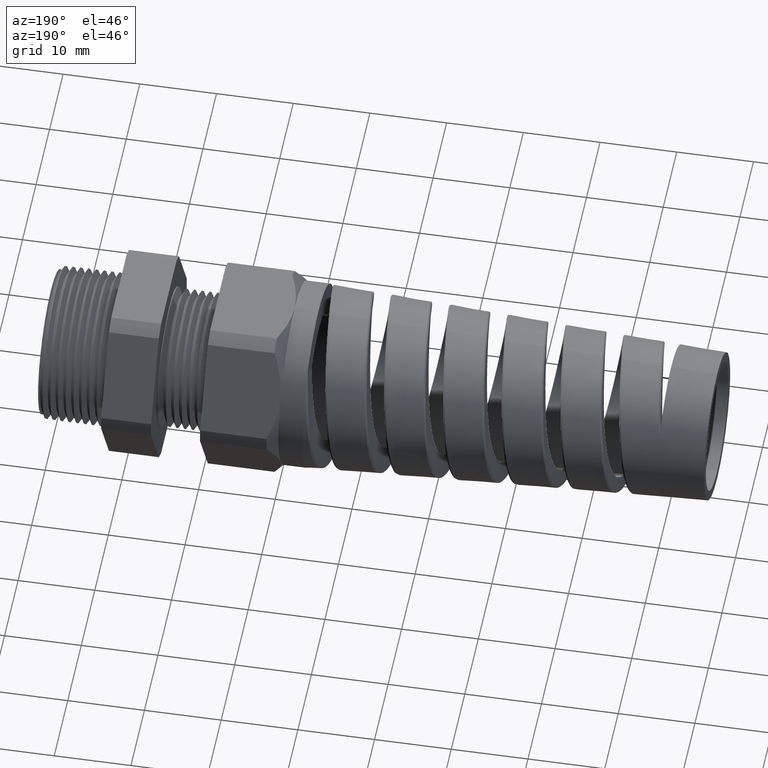
[diagram: clean part render]
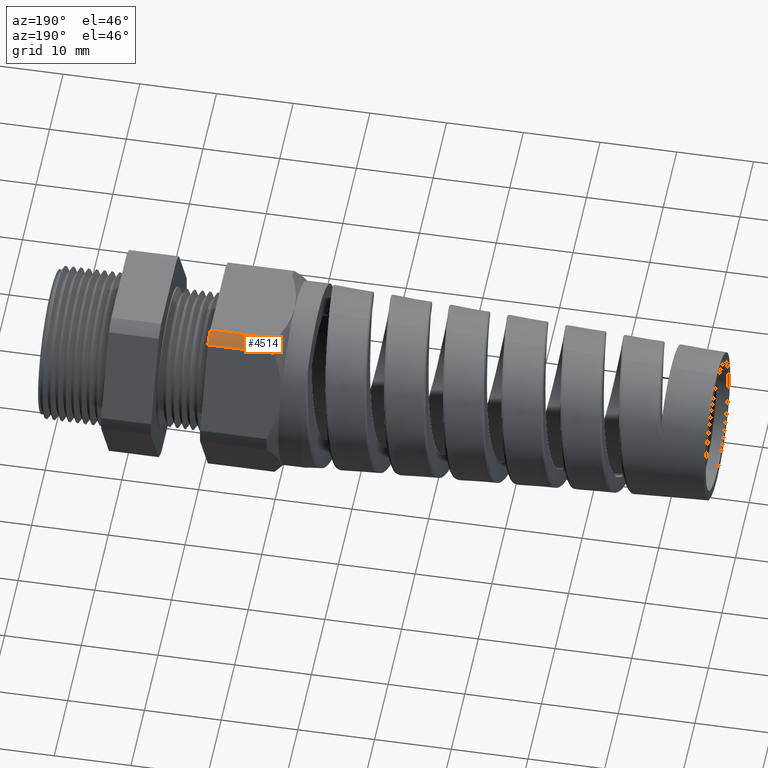
[diagram: same view with one face highlighted and labeled with its STEP entity id]
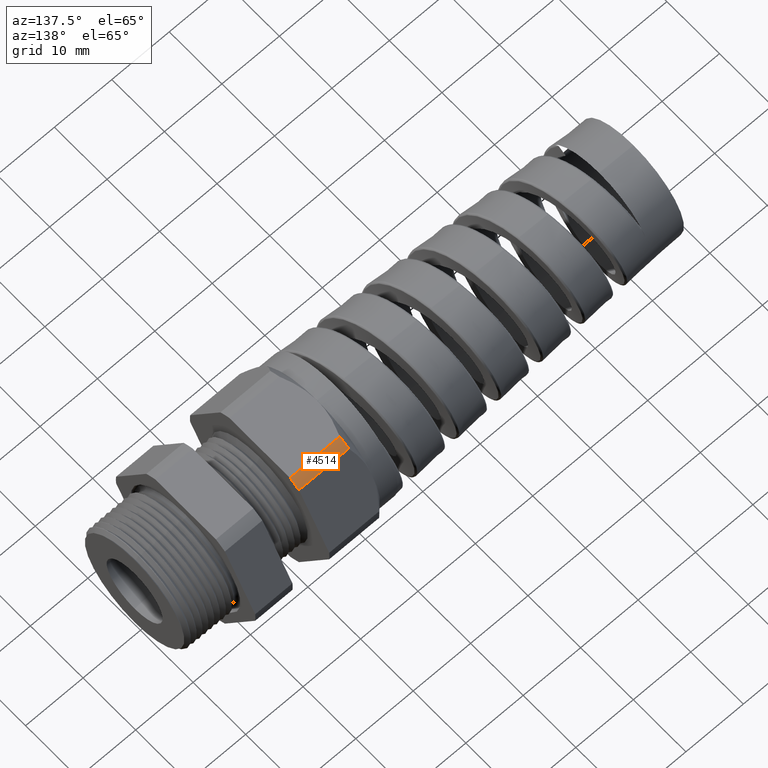
[diagram: same view with one face highlighted and labeled with its STEP entity id]
A machine part, auxiliary view. The second image highlights one B-rep face of the part: STEP entity #4514.
A second angle (auxiliary view) of the same face is appended — the face is thin or edge-on in the first view.
In plain terms, the highlighted cylindrical surface (partial cylindrical patch) has radius 13.2512 mm, axis along (-1, 0, 0).
Its self-contained STEP definition (entity closure, byte-faithful):
#31 = VERTEX_POINT ( 'NONE', #5986 ) ;
#103 = VERTEX_POINT ( 'NONE', #5985 ) ;
#104 = ORIENTED_EDGE ( 'NONE', *, *, #468, .F. ) ;
#105 = ORIENTED_EDGE ( 'NONE', *, *, #469, .F. ) ;
#106 = VERTEX_POINT ( 'NONE', #5984 ) ;
#452 = EDGE_CURVE ( 'NONE', #31, #455, #5971, .T. ) ;
#455 = VERTEX_POINT ( 'NONE', #6025 ) ;
#468 = EDGE_CURVE ( 'NONE', #31, #103, #6051, .T. ) ;
#469 = EDGE_CURVE ( 'NONE', #103, #106, #6046, .T. ) ;
#4514 = ADVANCED_FACE ( 'NONE', ( #7001 ), #6999, .T. ) ;
#4515 = EDGE_LOOP ( 'NONE', ( #4516, #4517, #105, #104 ) ) ;
#4516 = ORIENTED_EDGE ( 'NONE', *, *, #452, .T. ) ;
#4517 = ORIENTED_EDGE ( 'NONE', *, *, #4518, .T. ) ;
#4518 = EDGE_CURVE ( 'NONE', #455, #106, #6994, .T. ) ;
#5968 = DIRECTION ( 'NONE',  ( -1.000000000000000000, 0.0000000000000000000, 0.0000000000000000000 ) ) ;
#5969 = VECTOR ( 'NONE', #5968, 39.37007874015748100 ) ;
#5970 = CARTESIAN_POINT ( 'NONE',  ( 0.04000000000000011900, 0.2938165587564948700, 0.4310947921287048800 ) ) ;
#5971 = LINE ( 'NONE', #5970, #5969 ) ;
#5984 = CARTESIAN_POINT ( 'NONE',  ( -1.159559842519685400, 0.2264307620443832800, 0.4699999999999999200 ) ) ;
#5985 = CARTESIAN_POINT ( 'NONE',  ( -0.8175590551181102200, 0.2264307620443832800, 0.4699999999999999200 ) ) ;
#5986 = CARTESIAN_POINT ( 'NONE',  ( -0.8175590551181102200, 0.2938165587564948700, 0.4310947921287048800 ) ) ;
#6025 = CARTESIAN_POINT ( 'NONE',  ( -1.159559842519685100, 0.2938165587564948700, 0.4310947921287048800 ) ) ;
#6043 = DIRECTION ( 'NONE',  ( -1.000000000000000000, 0.0000000000000000000, 0.0000000000000000000 ) ) ;
#6044 = VECTOR ( 'NONE', #6043, 39.37007874015748100 ) ;
#6045 = CARTESIAN_POINT ( 'NONE',  ( 0.04000000000000011900, 0.2264307620443832800, 0.4699999999999999200 ) ) ;
#6046 = LINE ( 'NONE', #6045, #6044 ) ;
#6047 = DIRECTION ( 'NONE',  ( 0.0000000000000000000, 0.0000000000000000000, -1.000000000000000000 ) ) ;
#6048 = DIRECTION ( 'NONE',  ( 1.000000000000000000, 0.0000000000000000000, 0.0000000000000000000 ) ) ;
#6049 = CARTESIAN_POINT ( 'NONE',  ( -0.8175590551181102200, 0.0000000000000000000, 0.0000000000000000000 ) ) ;
#6050 = AXIS2_PLACEMENT_3D ( 'NONE', #6049, #6048, #6047 ) ;
#6051 = CIRCLE ( 'NONE', #6050, 0.5217000000000000500 ) ;
#6991 = DIRECTION ( 'NONE',  ( 0.0000000000000000000, 0.0000000000000000000, -1.000000000000000000 ) ) ;
#6992 = DIRECTION ( 'NONE',  ( 1.000000000000000000, 0.0000000000000000000, 0.0000000000000000000 ) ) ;
#6993 = AXIS2_PLACEMENT_3D ( 'NONE', #7000, #6992, #6991 ) ;
#6994 = CIRCLE ( 'NONE', #6993, 0.5217000000000000500 ) ;
#6995 = DIRECTION ( 'NONE',  ( 0.0000000000000000000, 0.0000000000000000000, 1.000000000000000000 ) ) ;
#6996 = DIRECTION ( 'NONE',  ( -1.000000000000000000, 0.0000000000000000000, 0.0000000000000000000 ) ) ;
#6997 = CARTESIAN_POINT ( 'NONE',  ( 0.04000000000000011900, 0.0000000000000000000, 0.0000000000000000000 ) ) ;
#6998 = AXIS2_PLACEMENT_3D ( 'NONE', #6997, #6996, #6995 ) ;
#6999 = CYLINDRICAL_SURFACE ( 'NONE', #6998, 0.5217000000000000500 ) ;
#7000 = CARTESIAN_POINT ( 'NONE',  ( -1.159559842519685100, 0.0000000000000000000, 0.0000000000000000000 ) ) ;
#7001 = FACE_OUTER_BOUND ( 'NONE', #4515, .T. ) ;